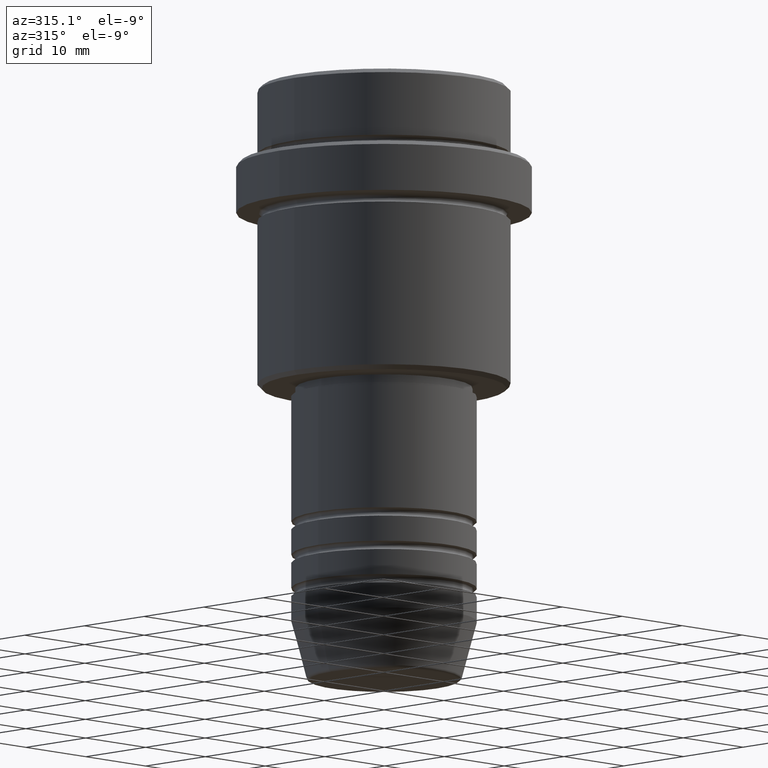
[diagram: clean part render]
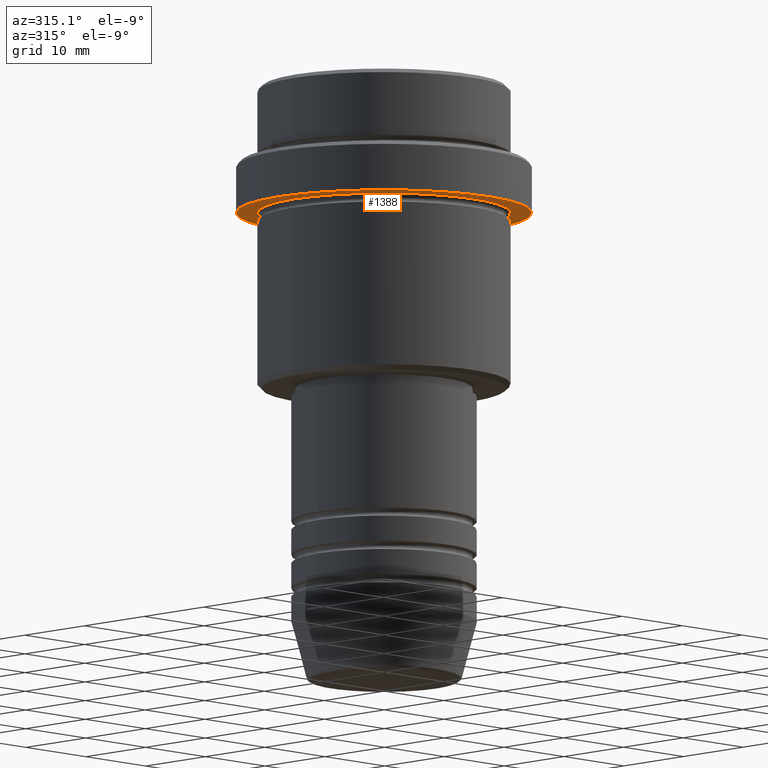
[diagram: same view with one face highlighted and labeled with its STEP entity id]
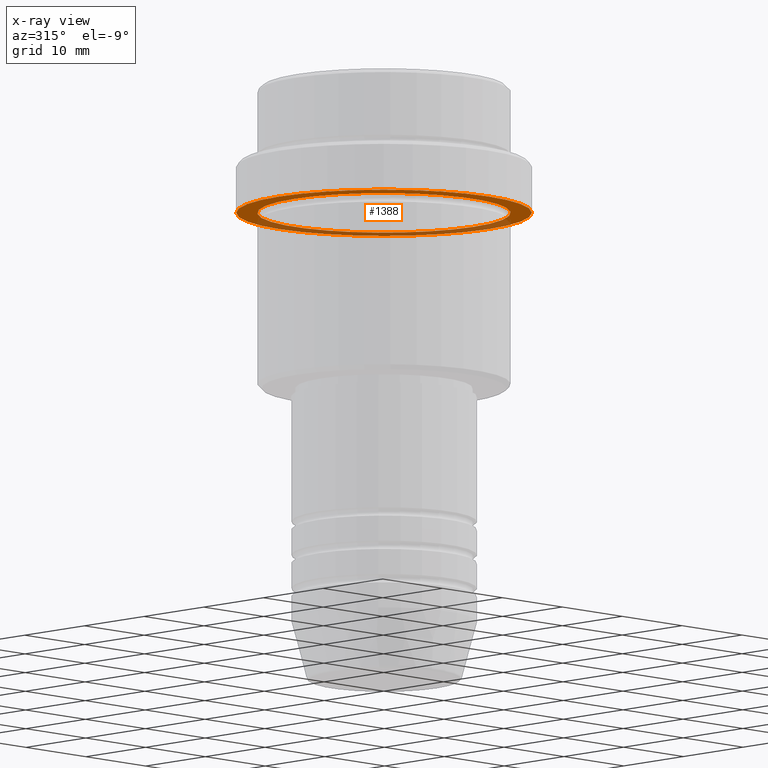
[diagram: x-ray of the same camera — body ghosted, the highlighted face saturated]
A machine part, auxiliary view. The second image highlights one B-rep face of the part: STEP entity #1388.
The next image is the same camera in x-ray: the body ghosted, the highlighted face saturated — about 36% of this face is hidden behind the body in this view.
In plain terms, the highlighted planar face has unit normal (0, 0, -1).
Its self-contained STEP definition (entity closure, byte-faithful):
#13 = CARTESIAN_POINT ( 'NONE',  ( 0.000000000000000000, 0.000000000000000000, -15.00000000000000000 ) ) ;
#107 = ORIENTED_EDGE ( 'NONE', *, *, #923, .T. ) ;
#121 = ORIENTED_EDGE ( 'NONE', *, *, #884, .F. ) ;
#128 = VERTEX_POINT ( 'NONE', #897 ) ;
#213 = EDGE_CURVE ( 'NONE', #454, #1321, #523, .T. ) ;
#275 = CARTESIAN_POINT ( 'NONE',  ( -17.50000000000000000, 2.143131898507868248E-15, -15.00000000000000000 ) ) ;
#306 = ORIENTED_EDGE ( 'NONE', *, *, #213, .F. ) ;
#344 = DIRECTION ( 'NONE',  ( -0.000000000000000000, -0.000000000000000000, 1.000000000000000000 ) ) ;
#385 = EDGE_CURVE ( 'NONE', #766, #128, #1372, .T. ) ;
#427 = CARTESIAN_POINT ( 'NONE',  ( 0.000000000000000000, 0.000000000000000000, -15.00000000000000000 ) ) ;
#428 = PLANE ( 'NONE',  #1122 ) ;
#449 = DIRECTION ( 'NONE',  ( -0.000000000000000000, -0.000000000000000000, 1.000000000000000000 ) ) ;
#454 = VERTEX_POINT ( 'NONE', #1401 ) ;
#501 = AXIS2_PLACEMENT_3D ( 'NONE', #1323, #344, #576 ) ;
#523 = CIRCLE ( 'NONE', #501, 17.50000000000000000 ) ;
#549 = DIRECTION ( 'NONE',  ( 0.000000000000000000, 0.000000000000000000, -1.000000000000000000 ) ) ;
#576 = DIRECTION ( 'NONE',  ( 1.000000000000000000, 0.000000000000000000, 0.000000000000000000 ) ) ;
#605 = EDGE_LOOP ( 'NONE', ( #984, #107 ) ) ;
#636 = CARTESIAN_POINT ( 'NONE',  ( 0.000000000000000000, 0.000000000000000000, -15.00000000000000000 ) ) ;
#692 = DIRECTION ( 'NONE',  ( 1.000000000000000000, 0.000000000000000000, 0.000000000000000000 ) ) ;
#766 = VERTEX_POINT ( 'NONE', #1243 ) ;
#770 = CARTESIAN_POINT ( 'NONE',  ( 0.000000000000000000, 17.50000000000000000, -15.00000000000000000 ) ) ;
#804 = AXIS2_PLACEMENT_3D ( 'NONE', #13, #449, #692 ) ;
#825 = AXIS2_PLACEMENT_3D ( 'NONE', #427, #875, #971 ) ;
#833 = DIRECTION ( 'NONE',  ( -1.000000000000000000, 0.000000000000000000, 0.000000000000000000 ) ) ;
#875 = DIRECTION ( 'NONE',  ( -0.000000000000000000, -0.000000000000000000, 1.000000000000000000 ) ) ;
#884 = EDGE_CURVE ( 'NONE', #1321, #454, #1235, .T. ) ;
#897 = CARTESIAN_POINT ( 'NONE',  ( 14.99999999999999467, 1.836970198721029194E-15, -15.00000000000000000 ) ) ;
#923 = EDGE_CURVE ( 'NONE', #128, #766, #1102, .T. ) ;
#965 = FACE_BOUND ( 'NONE', #605, .T. ) ;
#971 = DIRECTION ( 'NONE',  ( -1.000000000000000000, 0.000000000000000000, 0.000000000000000000 ) ) ;
#972 = FACE_OUTER_BOUND ( 'NONE', #1412, .T. ) ;
#984 = ORIENTED_EDGE ( 'NONE', *, *, #385, .T. ) ;
#1072 = AXIS2_PLACEMENT_3D ( 'NONE', #636, #1387, #833 ) ;
#1102 = CIRCLE ( 'NONE', #1072, 14.99999999999999467 ) ;
#1122 = AXIS2_PLACEMENT_3D ( 'NONE', #770, #549, #1413 ) ;
#1235 = CIRCLE ( 'NONE', #804, 17.50000000000000000 ) ;
#1243 = CARTESIAN_POINT ( 'NONE',  ( -14.99999999999999467, 0.000000000000000000, -15.00000000000000000 ) ) ;
#1321 = VERTEX_POINT ( 'NONE', #275 ) ;
#1323 = CARTESIAN_POINT ( 'NONE',  ( 0.000000000000000000, 0.000000000000000000, -15.00000000000000000 ) ) ;
#1372 = CIRCLE ( 'NONE', #825, 14.99999999999999467 ) ;
#1387 = DIRECTION ( 'NONE',  ( -0.000000000000000000, -0.000000000000000000, 1.000000000000000000 ) ) ;
#1388 = ADVANCED_FACE ( 'NONE', ( #965, #972 ), #428, .T. ) ;
#1401 = CARTESIAN_POINT ( 'NONE',  ( 17.50000000000000000, 0.000000000000000000, -15.00000000000000000 ) ) ;
#1412 = EDGE_LOOP ( 'NONE', ( #306, #121 ) ) ;
#1413 = DIRECTION ( 'NONE',  ( -1.000000000000000000, 0.000000000000000000, -0.000000000000000000 ) ) ;